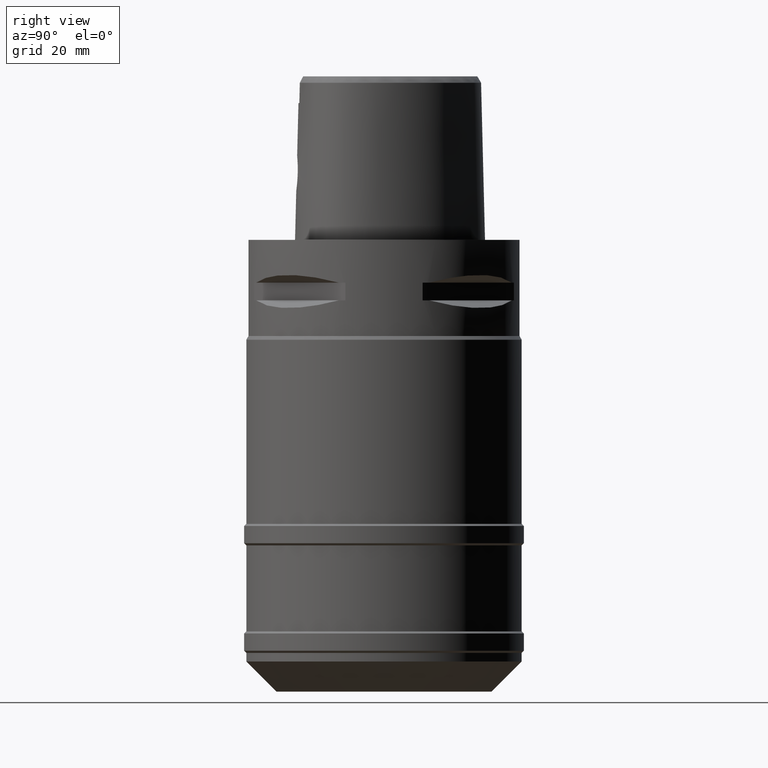
[diagram: clean part render]
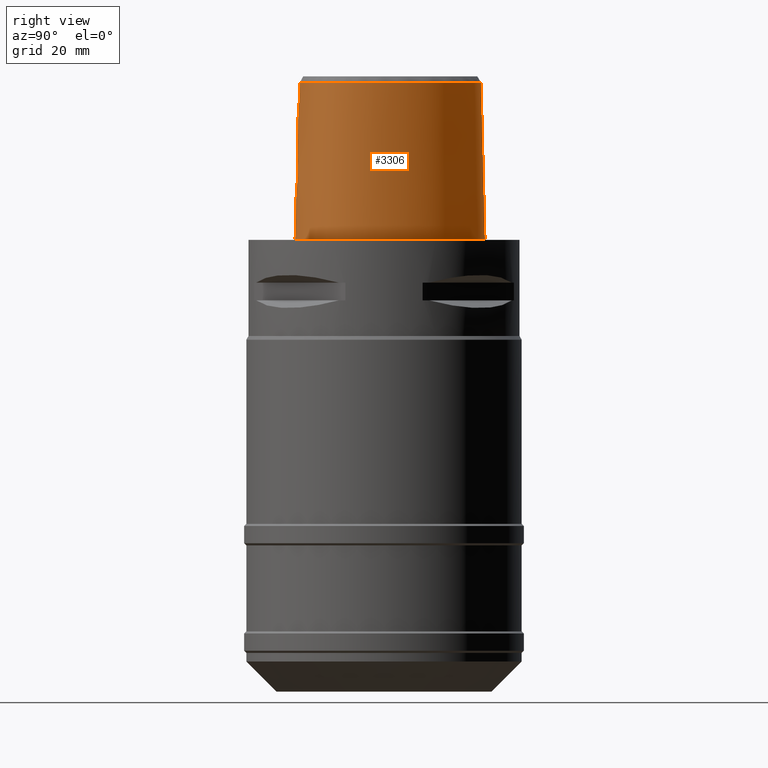
[diagram: same view with one face highlighted and labeled with its STEP entity id]
A machine part, right view. The second image highlights one B-rep face of the part: STEP entity #3306.
In plain terms, the highlighted face is a freeform B-spline surface patch.
Its self-contained STEP definition (entity closure, byte-faithful):
#134=CARTESIAN_POINT('',(3.637738219117E0,-1.956971420299E1,3.652185956444E1));
#144=CARTESIAN_POINT('',(-1.667907792902E-11,2.256201468012E1,
3.652186680744E1));
#145=CARTESIAN_POINT('',(3.876439141491E-1,2.256201468011E1,3.652186680744E1));
#146=CARTESIAN_POINT('',(1.160166764417E0,2.252277287952E1,3.652179525385E1));
#147=CARTESIAN_POINT('',(2.385461868672E0,2.233619832574E1,3.652187676295E1));
#148=CARTESIAN_POINT('',(3.669786076945E0,2.200750917845E1,3.652186319644E1));
#149=CARTESIAN_POINT('',(5.027986179812E0,2.151685594830E1,3.652187402889E1));
#150=CARTESIAN_POINT('',(6.459564743744E0,2.084105507600E1,3.652186779070E1));
#151=CARTESIAN_POINT('',(7.912176109637E0,1.998828303412E1,3.652186807808E1));
#152=CARTESIAN_POINT('',(9.355461898342E0,1.897262199195E1,3.652186340391E1));
#153=CARTESIAN_POINT('',(1.080575828428E1,1.777688421416E1,3.652187155570E1));
#154=CARTESIAN_POINT('',(1.232138423369E1,1.632857174076E1,3.652186551832E1));
#155=CARTESIAN_POINT('',(1.393850104042E1,1.452487170156E1,3.652186935294E1));
#156=CARTESIAN_POINT('',(1.551864252029E1,1.244938668258E1,3.652183742926E1));
#157=CARTESIAN_POINT('',(1.697015951435E1,1.019683525629E1,3.652186904372E1));
#158=CARTESIAN_POINT('',(1.824544277146E1,7.833086968720E0,3.652186144215E1));
#159=CARTESIAN_POINT('',(1.931318362197E1,5.420711236267E0,3.652186558218E1));
#160=CARTESIAN_POINT('',(2.013149247763E1,3.083916746228E0,3.652187105172E1));
#161=CARTESIAN_POINT('',(2.068866406552E1,9.806703677154E-1,3.652186030585E1));
#162=CARTESIAN_POINT('',(2.104336611833E1,-9.155788206726E-1,3.652186922946E1));
#163=CARTESIAN_POINT('',(2.123896886505E1,-2.687156799710E0,3.652186568778E1));
#164=CARTESIAN_POINT('',(2.128983019219E1,-4.395801704161E0,3.652186796707E1));
#165=CARTESIAN_POINT('',(2.119430248586E1,-6.015130475253E0,3.652186710282E1));
#166=CARTESIAN_POINT('',(2.096948135973E1,-7.476697374670E0,3.652187011135E1));
#167=CARTESIAN_POINT('',(2.063672305575E1,-8.789154002814E0,3.652186783708E1));
#168=CARTESIAN_POINT('',(2.020963216500E1,-9.970830707856E0,3.652185746801E1));
#169=CARTESIAN_POINT('',(1.969839222879E1,-1.103813041534E1,3.652187889151E1));
#170=CARTESIAN_POINT('',(1.909005209770E1,-1.203154018613E1,3.652187263921E1));
#171=CARTESIAN_POINT('',(1.835332997358E1,-1.299949864240E1,3.652187671442E1));
#172=CARTESIAN_POINT('',(1.746431925924E1,-1.395332925741E1,3.652186406049E1));
#173=CARTESIAN_POINT('',(1.641022790193E1,-1.488523317881E1,3.652186886226E1));
#174=CARTESIAN_POINT('',(1.514804718088E1,-1.580358881685E1,3.652186869152E1));
#175=CARTESIAN_POINT('',(1.371156636844E1,-1.665845784554E1,3.652186525004E1));
#176=CARTESIAN_POINT('',(1.214638634895E1,-1.742004841323E1,3.652186783812E1));
#177=CARTESIAN_POINT('',(1.042424140204E1,-1.809836003957E1,3.652187061086E1));
#178=CARTESIAN_POINT('',(8.494297543563E0,-1.869976187446E1,3.652185559946E1));
#179=CARTESIAN_POINT('',(6.206001096755E0,-1.922612770503E1,3.652187910101E1));
#180=CARTESIAN_POINT('',(4.519194829960E0,-1.947579793058E1,3.652183691898E1));
#181=CARTESIAN_POINT('',(3.637738219117E0,-1.956971420299E1,3.652185956444E1));
#255=DIRECTION('',(-1.665636293796E-9,-2.499140646182E-2,-9.996876660253E-1));
#256=VECTOR('',#255,1.225382733632E1);
#257=CARTESIAN_POINT('',(2.041042029991E-8,-1.988004246002E1,3.180000004972E1));
#258=LINE('',#257,#256);
#276=CARTESIAN_POINT('',(-1.106952355664E-12,-2.038876923348E1,1.145E1));
#281=DIRECTION('',(-6.778216563452E-13,-2.499051295390E-2,-9.996876883619E-1));
#282=VECTOR('',#281,1.145357708542E1);
#283=CARTESIAN_POINT('',(-1.106952355664E-12,-2.038876923348E1,1.145E1));
#284=LINE('',#283,#282);
#304=CARTESIAN_POINT('',(-8.870434946782E-12,-2.0675E1,4.407585407762E-14));
#305=CARTESIAN_POINT('',(9.157886753971E-1,-2.0675E1,4.407585407762E-14));
#306=CARTESIAN_POINT('',(2.716234500743E0,-2.060527203343E1,
-2.045567506600E-14));
#307=CARTESIAN_POINT('',(5.360203272369E0,-2.029905091003E1,0.E0));
#308=CARTESIAN_POINT('',(7.837418141586E0,-1.981293365489E1,0.E0));
#309=CARTESIAN_POINT('',(1.010182478840E1,-1.917835039156E1,0.E0));
#310=CARTESIAN_POINT('',(1.212577374062E1,-1.842825659410E1,0.E0));
#311=CARTESIAN_POINT('',(1.390431626838E1,-1.759330896769E1,0.E0));
#312=CARTESIAN_POINT('',(1.544841011934E1,-1.669781835896E1,0.E0));
#313=CARTESIAN_POINT('',(1.677660927699E1,-1.575964295179E1,0.E0));
#314=CARTESIAN_POINT('',(1.790980551229E1,-1.479156481204E1,0.E0));
#315=CARTESIAN_POINT('',(1.887255026170E1,-1.379671229974E1,0.E0));
#316=CARTESIAN_POINT('',(1.967701849581E1,-1.278536325006E1,0.E0));
#317=CARTESIAN_POINT('',(2.034722948819E1,-1.174896512307E1,0.E0));
#318=CARTESIAN_POINT('',(2.091065913139E1,-1.064911485386E1,0.E0));
#319=CARTESIAN_POINT('',(2.138559521904E1,-9.442788469570E0,0.E0));
#320=CARTESIAN_POINT('',(2.176481788559E1,-8.114107993502E0,0.E0));
#321=CARTESIAN_POINT('',(2.203676139310E1,-6.647931332744E0,0.E0));
#322=CARTESIAN_POINT('',(2.218500875372E1,-5.028262774781E0,0.E0));
#323=CARTESIAN_POINT('',(2.218835296590E1,-3.242731615479E0,0.E0));
#324=CARTESIAN_POINT('',(2.202179983097E1,-1.283568250668E0,0.E0));
#325=CARTESIAN_POINT('',(2.165898021113E1,8.448271094581E-1,0.E0));
#326=CARTESIAN_POINT('',(2.107570055479E1,3.124446706083E0,0.E0));
#327=CARTESIAN_POINT('',(2.025673108642E1,5.514427736557E0,0.E0));
#328=CARTESIAN_POINT('',(1.920132339953E1,7.954281141581E0,0.E0));
#329=CARTESIAN_POINT('',(1.792993274410E1,1.036427455273E1,0.E0));
#330=CARTESIAN_POINT('',(1.647752867654E1,1.266879911410E1,0.E0));
#331=CARTESIAN_POINT('',(1.489176388439E1,1.480080580690E1,0.E0));
#332=CARTESIAN_POINT('',(1.323116568206E1,1.670310415222E1,0.E0));
#333=CARTESIAN_POINT('',(1.154923417819E1,1.834550527201E1,0.E0));
#334=CARTESIAN_POINT('',(9.887651117779E0,1.972206079902E1,0.E0));
#335=CARTESIAN_POINT('',(8.275410117849E0,2.084364901641E1,0.E0));
#336=CARTESIAN_POINT('',(6.728295441344E0,2.173185750559E1,0.E0));
#337=CARTESIAN_POINT('',(5.252369441389E0,2.241189455146E1,0.E0));
#338=CARTESIAN_POINT('',(3.846984842658E0,2.290849605733E1,0.E0));
#339=CARTESIAN_POINT('',(2.506799832726E0,2.324345605061E1,0.E0));
#340=CARTESIAN_POINT('',(1.226301165713E0,2.343448453374E1,
-1.913318389884E-14));
#341=CARTESIAN_POINT('',(4.031661629987E-1,2.347499999999E1,
4.122628164775E-14));
#342=CARTESIAN_POINT('',(5.011711158472E-11,2.347499999999E1,
4.122628164775E-14));
#347=CARTESIAN_POINT('',(5.011711158472E-11,2.347499999999E1,
4.122628164775E-14));
#385=CARTESIAN_POINT('',(-8.870434946782E-12,-2.0675E1,4.407585407762E-14));
#1180=CARTESIAN_POINT('',(-1.106952355664E-12,-2.038876923348E1,1.145E1));
#1181=CARTESIAN_POINT('',(3.518410039384E-1,-2.038876923348E1,1.145E1));
#1182=CARTESIAN_POINT('',(1.056002269218E0,-2.037568214282E1,1.154238708990E1));
#1183=CARTESIAN_POINT('',(2.040385422199E0,-2.032131306427E1,1.194792367503E1));
#1184=CARTESIAN_POINT('',(2.891794145478E0,-2.024379318177E1,1.259807706061E1));
#1185=CARTESIAN_POINT('',(3.545775398699E0,-2.016065841224E1,1.344776599254E1));
#1186=CARTESIAN_POINT('',(3.957111572052E0,-2.009016928171E1,1.443938952574E1));
#1187=CARTESIAN_POINT('',(4.096327614963E0,-2.004685475213E1,1.549997055253E1));
#1188=CARTESIAN_POINT('',(3.957577704512E0,-2.003680793094E1,1.655714913641E1));
#1189=CARTESIAN_POINT('',(3.549577819492E0,-2.005726835327E1,1.754497021867E1));
#1190=CARTESIAN_POINT('',(2.899403737141E0,-2.009772754991E1,1.839411373098E1));
#1191=CARTESIAN_POINT('',(2.049555943289E0,-2.014302748467E1,1.904720420744E1));
#1192=CARTESIAN_POINT('',(1.060000729701E0,-2.017769463663E1,1.945708074101E1));
#1193=CARTESIAN_POINT('',(3.531896813643E-1,-2.018628283969E1,1.955E1));
#1194=CARTESIAN_POINT('',(0.E0,-2.018628283969E1,1.955E1));
#1199=CARTESIAN_POINT('',(3.736696120838E0,-1.967778323292E1,3.180000004973E1));
#1200=CARTESIAN_POINT('',(3.726005752326E0,-1.966575923680E1,3.232454431401E1));
#1201=CARTESIAN_POINT('',(3.704089546608E0,-1.964135163374E1,3.337368958252E1));
#1202=CARTESIAN_POINT('',(3.671106187705E0,-1.960533295284E1,3.494764256979E1));
#1203=CARTESIAN_POINT('',(3.649042743234E0,-1.958170238761E1,3.599710209057E1));
#1204=CARTESIAN_POINT('',(3.637738219117E0,-1.956971420299E1,3.652185956444E1));
#1209=DIRECTION('',(1.828365692217E-12,2.499051290963E-2,-9.996876883630E-1));
#1210=VECTOR('',#1209,3.653327657485E1);
#1211=CARTESIAN_POINT('',(-1.667907792902E-11,2.256201468012E1,
3.652186680744E1));
#1212=LINE('',#1211,#1210);
#1216=CARTESIAN_POINT('',(3.736696120838E0,-1.967778323292E1,3.180000004973E1));
#1217=CARTESIAN_POINT('',(3.322953877844E0,-1.972294683117E1,3.180000004973E1));
#1218=CARTESIAN_POINT('',(2.494485023251E0,-1.979770229043E1,3.179999998342E1));
#1219=CARTESIAN_POINT('',(1.247889117313E0,-1.986528006854E1,3.179999998343E1));
#1220=CARTESIAN_POINT('',(4.161790006858E-1,-1.988004246001E1,
3.180000004972E1));
#1221=CARTESIAN_POINT('',(2.041042029991E-8,-1.988004246002E1,
3.180000004972E1));
#1226=CARTESIAN_POINT('',(2.041042029991E-8,-1.988004246002E1,
3.180000004972E1));
#1671=VERTEX_POINT('',#134);
#1672=VERTEX_POINT('',#1199);
#1678=CARTESIAN_POINT('',(-1.667907792902E-11,2.256201468012E1,
3.652186680744E1));
#1679=VERTEX_POINT('',#1678);
#1680=VERTEX_POINT('',#347);
#1681=VERTEX_POINT('',#385);
#1682=VERTEX_POINT('',#1226);
#1683=CARTESIAN_POINT('',(0.E0,-2.018628283969E1,1.955E1));
#1684=VERTEX_POINT('',#1683);
#1685=VERTEX_POINT('',#276);
#3194=CARTESIAN_POINT('',(-6.840631435410E-1,-2.068668115963E1,
-7.304375083385E-1));
#3195=CARTESIAN_POINT('',(-6.779734151159E-1,-2.037023491190E1,
1.193047930286E1));
#3196=CARTESIAN_POINT('',(-6.718836866909E-1,-2.005378866416E1,
2.459139611406E1));
#3197=CARTESIAN_POINT('',(-6.657939582658E-1,-1.973734241643E1,
3.725231292526E1));
#3198=CARTESIAN_POINT('',(-4.561077449158E-1,-2.069106755192E1,
-7.304375083385E-1));
#3199=CARTESIAN_POINT('',(-4.520500680053E-1,-2.037458454875E1,
1.193047930286E1));
#3200=CARTESIAN_POINT('',(-4.479923910949E-1,-2.005810154558E1,
2.459139611406E1));
#3201=CARTESIAN_POINT('',(-4.439347141844E-1,-1.974161854241E1,
3.725231292526E1));
#3202=CARTESIAN_POINT('',(1.886855603044E0,-2.071358919111E1,
-7.304375083385E-1));
#3203=CARTESIAN_POINT('',(1.870063866029E0,-2.039691458747E1,1.193047930286E1));
#3204=CARTESIAN_POINT('',(1.853272129014E0,-2.008023998384E1,2.459139611406E1));
#3205=CARTESIAN_POINT('',(1.836480391999E0,-1.976356538020E1,3.725231292526E1));
#3206=CARTESIAN_POINT('',(6.344715575936E0,-2.031619964543E1,
-7.304375083385E-1));
#3207=CARTESIAN_POINT('',(6.288476592714E0,-2.000290579135E1,1.193047930286E1));
#3208=CARTESIAN_POINT('',(6.232237609492E0,-1.968961193727E1,2.459139611406E1));
#3209=CARTESIAN_POINT('',(6.175998626269E0,-1.937631808319E1,3.725231292526E1));
#3210=CARTESIAN_POINT('',(1.123887130106E1,-1.891049775609E1,
-7.304375083385E-1));
#3211=CARTESIAN_POINT('',(1.113012658220E1,-1.861140123371E1,1.193047930286E1));
#3212=CARTESIAN_POINT('',(1.102138186334E1,-1.831230471133E1,2.459139611406E1));
#3213=CARTESIAN_POINT('',(1.091263714448E1,-1.801320818895E1,3.725231292526E1));
#3214=CARTESIAN_POINT('',(1.468244496907E1,-1.723001772656E1,
-7.304375083385E-1));
#3215=CARTESIAN_POINT('',(1.452531267129E1,-1.695413754945E1,1.193047930286E1));
#3216=CARTESIAN_POINT('',(1.436818037352E1,-1.667825737233E1,2.459139611406E1));
#3217=CARTESIAN_POINT('',(1.421104807574E1,-1.640237719522E1,3.725231292526E1));
#3218=CARTESIAN_POINT('',(1.697022730844E1,-1.569280482777E1,
-7.304375083385E-1));
#3219=CARTESIAN_POINT('',(1.677374387835E1,-1.544292479229E1,1.193047930286E1));
#3220=CARTESIAN_POINT('',(1.657726044825E1,-1.519304475682E1,2.459139611406E1));
#3221=CARTESIAN_POINT('',(1.638077701815E1,-1.494316472134E1,3.725231292526E1));
#3222=CARTESIAN_POINT('',(1.858171406275E1,-1.418198046255E1,
-7.304375083385E-1));
#3223=CARTESIAN_POINT('',(1.835112159965E1,-1.396357041373E1,1.193047930286E1));
#3224=CARTESIAN_POINT('',(1.812052913654E1,-1.374516036492E1,2.459139611406E1));
#3225=CARTESIAN_POINT('',(1.788993667344E1,-1.352675031610E1,3.725231292526E1));
#3226=CARTESIAN_POINT('',(1.966427014280E1,-1.283600704422E1,
-7.304375083385E-1));
#3227=CARTESIAN_POINT('',(1.940779775070E1,-1.264961931953E1,1.193047930286E1));
#3228=CARTESIAN_POINT('',(1.915132535861E1,-1.246323159485E1,2.459139611406E1));
#3229=CARTESIAN_POINT('',(1.889485296652E1,-1.227684387017E1,3.725231292526E1));
#3230=CARTESIAN_POINT('',(2.036546124141E1,-1.175800452993E1,
-7.304375083385E-1));
#3231=CARTESIAN_POINT('',(2.009084480675E1,-1.159945465686E1,1.193047930286E1));
#3232=CARTESIAN_POINT('',(1.981622837209E1,-1.144090478378E1,2.459139611406E1));
#3233=CARTESIAN_POINT('',(1.954161193742E1,-1.128235491070E1,3.725231292526E1));
#3234=CARTESIAN_POINT('',(2.094844325475E1,-1.061175396824E1,
-7.304375083385E-1));
#3235=CARTESIAN_POINT('',(2.065879055586E1,-1.048283622704E1,1.193047930286E1));
#3236=CARTESIAN_POINT('',(2.036913785698E1,-1.035391848584E1,2.459139611406E1));
#3237=CARTESIAN_POINT('',(2.007948515809E1,-1.022500074464E1,3.725231292526E1));
#3238=CARTESIAN_POINT('',(2.157281238851E1,-9.001246193962E0,
-7.304375083385E-1));
#3239=CARTESIAN_POINT('',(2.126836749598E1,-8.910752269448E0,1.193047930286E1));
#3240=CARTESIAN_POINT('',(2.096392260344E1,-8.820258344934E0,2.459139611406E1));
#3241=CARTESIAN_POINT('',(2.065947771090E1,-8.729764420419E0,3.725231292526E1));
#3242=CARTESIAN_POINT('',(2.207548128686E1,-6.850245534873E0,
-7.304375083385E-1));
#3243=CARTESIAN_POINT('',(2.176083719714E1,-6.805026055397E0,1.193047930286E1));
#3244=CARTESIAN_POINT('',(2.144619310743E1,-6.759806575922E0,2.459139611406E1));
#3245=CARTESIAN_POINT('',(2.113154901771E1,-6.714587096446E0,3.725231292526E1));
#3246=CARTESIAN_POINT('',(2.226285556109E1,-4.100361500074E0,
-7.304375083385E-1));
#3247=CARTESIAN_POINT('',(2.194536986372E1,-4.102220498791E0,1.193047930286E1));
#3248=CARTESIAN_POINT('',(2.162788416634E1,-4.104079497508E0,2.459139611406E1));
#3249=CARTESIAN_POINT('',(2.131039846897E1,-4.105938496224E0,3.725231292526E1));
#3250=CARTESIAN_POINT('',(2.199640701171E1,-2.778990169752E-1,
-7.304375083385E-1));
#3251=CARTESIAN_POINT('',(2.168301109176E1,-3.332743894050E-1,
1.193047930286E1));
#3252=CARTESIAN_POINT('',(2.136961517182E1,-3.886497618348E-1,
2.459139611406E1));
#3253=CARTESIAN_POINT('',(2.105621925187E1,-4.440251342646E-1,
3.725231292526E1));
#3254=CARTESIAN_POINT('',(2.076670354509E1,4.663413652535E0,
-7.304375083385E-1));
#3255=CARTESIAN_POINT('',(2.046725051605E1,4.555493675262E0,1.193047930286E1));
#3256=CARTESIAN_POINT('',(2.016779748701E1,4.447573697988E0,2.459139611406E1));
#3257=CARTESIAN_POINT('',(1.986834445797E1,4.339653720715E0,3.725231292526E1));
#3258=CARTESIAN_POINT('',(1.808416037945E1,1.044089486998E1,
-7.304375083385E-1));
#3259=CARTESIAN_POINT('',(1.780867314696E1,1.028184212366E1,1.193047930286E1));
#3260=CARTESIAN_POINT('',(1.753318591447E1,1.012278937733E1,2.459139611406E1));
#3261=CARTESIAN_POINT('',(1.725769868197E1,9.963736631002E0,3.725231292526E1));
#3262=CARTESIAN_POINT('',(1.442198651673E1,1.565278599975E1,
-7.304375083385E-1));
#3263=CARTESIAN_POINT('',(1.417879764611E1,1.544741200413E1,1.193047930286E1));
#3264=CARTESIAN_POINT('',(1.393560877549E1,1.524203800852E1,2.459139611406E1));
#3265=CARTESIAN_POINT('',(1.369241990487E1,1.503666401290E1,3.725231292526E1));
#3266=CARTESIAN_POINT('',(1.075753573538E1,1.918839675422E1,
-7.304375083385E-1));
#3267=CARTESIAN_POINT('',(1.055288410563E1,1.894467593101E1,1.193047930286E1));
#3268=CARTESIAN_POINT('',(1.034823247587E1,1.870095510779E1,2.459139611406E1));
#3269=CARTESIAN_POINT('',(1.014358084611E1,1.845723428457E1,3.725231292526E1));
#3270=CARTESIAN_POINT('',(7.580410837987E0,2.133037925919E1,
-7.304375083385E-1));
#3271=CARTESIAN_POINT('',(7.420053174957E0,2.105635751643E1,1.193047930286E1));
#3272=CARTESIAN_POINT('',(7.259695511927E0,2.078233577367E1,2.459139611406E1));
#3273=CARTESIAN_POINT('',(7.099337848897E0,2.050831403091E1,3.725231292526E1));
#3274=CARTESIAN_POINT('',(5.105252914507E0,2.254305023840E1,
-7.304375083385E-1));
#3275=CARTESIAN_POINT('',(4.987110695979E0,2.224795287695E1,1.193047930286E1));
#3276=CARTESIAN_POINT('',(4.868968477452E0,2.195285551549E1,2.459139611406E1));
#3277=CARTESIAN_POINT('',(4.750826258925E0,2.165775815403E1,3.725231292526E1));
#3278=CARTESIAN_POINT('',(2.568271204898E0,2.331126237969E1,
-7.304375083385E-1));
#3279=CARTESIAN_POINT('',(2.503210920572E0,2.299958946507E1,1.193047930286E1));
#3280=CARTESIAN_POINT('',(2.438150636246E0,2.268791655044E1,2.459139611406E1));
#3281=CARTESIAN_POINT('',(2.373090351919E0,2.237624363582E1,3.725231292526E1));
#3282=CARTESIAN_POINT('',(6.155340738183E-1,2.351883497325E1,
-7.304375083385E-1));
#3283=CARTESIAN_POINT('',(5.990982052587E-1,2.320165475977E1,1.193047930286E1));
#3284=CARTESIAN_POINT('',(5.826623366990E-1,2.288447454629E1,2.459139611406E1));
#3285=CARTESIAN_POINT('',(5.662264681394E-1,2.256729433281E1,3.725231292526E1));
#3286=CARTESIAN_POINT('',(-4.812391252390E-1,2.348607175859E1,
-7.304375083385E-1));
#3287=CARTESIAN_POINT('',(-4.685451995689E-1,2.316976081601E1,
1.193047930286E1));
#3288=CARTESIAN_POINT('',(-4.558512738988E-1,2.285344987343E1,
2.459139611406E1));
#3289=CARTESIAN_POINT('',(-4.431573482288E-1,2.253713893085E1,
3.725231292526E1));
#3290=CARTESIAN_POINT('',(-7.217521645116E-1,2.347150798269E1,
-7.304375083385E-1));
#3291=CARTESIAN_POINT('',(-7.025952905962E-1,2.315559752946E1,
1.193047930286E1));
#3292=CARTESIAN_POINT('',(-6.834384166807E-1,2.283968707622E1,
2.459139611406E1));
#3293=CARTESIAN_POINT('',(-6.642815427653E-1,2.252377662299E1,
3.725231292526E1));
#3294=B_SPLINE_SURFACE_WITH_KNOTS('',3,3,((#3194,#3195,#3196,#3197),(#3198,
#3199,#3200,#3201),(#3202,#3203,#3204,#3205),(#3206,#3207,#3208,#3209),(#3210,
#3211,#3212,#3213),(#3214,#3215,#3216,#3217),(#3218,#3219,#3220,#3221),(#3222,
#3223,#3224,#3225),(#3226,#3227,#3228,#3229),(#3230,#3231,#3232,#3233),(#3234,
#3235,#3236,#3237),(#3238,#3239,#3240,#3241),(#3242,#3243,#3244,#3245),(#3246,
#3247,#3248,#3249),(#3250,#3251,#3252,#3253),(#3254,#3255,#3256,#3257),(#3258,
#3259,#3260,#3261),(#3262,#3263,#3264,#3265),(#3266,#3267,#3268,#3269),(#3270,
#3271,#3272,#3273),(#3274,#3275,#3276,#3277),(#3278,#3279,#3280,#3281),(#3282,
#3283,#3284,#3285),(#3286,#3287,#3288,#3289),(#3290,#3291,#3292,#3293)),
.UNSPECIFIED.,.F.,.F.,.F.,(4,1,1,1,1,1,1,1,1,1,1,1,1,1,1,1,1,1,1,1,1,1,4),(4,4),
(-8.985960173587E-3,0.E0,8.333333333341E-2,1.666666666667E-1,2.083333333333E-1,
2.5E-1,2.916666666667E-1,3.125E-1,3.333333333333E-1,3.541666666667E-1,
3.749999999999E-1,4.166666666666E-1,4.583333333332E-1,4.999999999999E-1,
5.833333333331E-1,6.666666666665E-1,7.499999999998E-1,8.333333333330E-1,
8.749999999997E-1,9.166666666664E-1,9.583333333330E-1,1.E0,1.011710456763E0),(
5.711888236698E-9,9.999997086937E-1),.UNSPECIFIED.);
#3295=ORIENTED_EDGE('',*,*,#2535,.F.);
#3296=ORIENTED_EDGE('',*,*,#2519,.F.);
#3297=ORIENTED_EDGE('',*,*,#3186,.T.);
#3298=ORIENTED_EDGE('',*,*,#2515,.F.);
#3300=ORIENTED_EDGE('',*,*,#3299,.F.);
#3301=ORIENTED_EDGE('',*,*,#1878,.T.);
#3302=ORIENTED_EDGE('',*,*,#2144,.F.);
#3303=ORIENTED_EDGE('',*,*,#2509,.T.);
#3304=EDGE_LOOP('',(#3295,#3296,#3297,#3298,#3300,#3301,#3302,#3303));
#3305=FACE_OUTER_BOUND('',#3304,.F.);
#182=B_SPLINE_CURVE_WITH_KNOTS('',3,(#144,#145,#146,#147,#148,#149,#150,#151,
#152,#153,#154,#155,#156,#157,#158,#159,#160,#161,#162,#163,#164,#165,#166,#167,
#168,#169,#170,#171,#172,#173,#174,#175,#176,#177,#178,#179,#180,#181),
.UNSPECIFIED.,.F.,.F.,(4,1,1,1,1,1,1,1,1,1,1,1,1,1,1,1,1,1,1,1,1,1,1,1,1,1,1,1,
1,1,1,1,1,1,1,4),(0.E0,2.857142857143E-2,5.714285714286E-2,8.571428571429E-2,
1.142857142857E-1,1.428571428571E-1,1.714285714286E-1,2.E-1,2.285714285714E-1,
2.571428571429E-1,2.857142857143E-1,3.142857142857E-1,3.428571428571E-1,
3.714285714286E-1,4.E-1,4.285714285714E-1,4.571428571429E-1,4.857142857143E-1,
5.142857142857E-1,5.428571428571E-1,5.714285714286E-1,6.E-1,6.285714285714E-1,
6.571428571429E-1,6.857142857143E-1,7.142857142857E-1,7.428571428571E-1,
7.714285714286E-1,8.E-1,8.285714285714E-1,8.571428571429E-1,8.857142857143E-1,
9.142857142857E-1,9.428571428571E-1,9.714285714286E-1,1.E0),.UNSPECIFIED.);
#343=B_SPLINE_CURVE_WITH_KNOTS('',3,(#304,#305,#306,#307,#308,#309,#310,#311,
#312,#313,#314,#315,#316,#317,#318,#319,#320,#321,#322,#323,#324,#325,#326,#327,
#328,#329,#330,#331,#332,#333,#334,#335,#336,#337,#338,#339,#340,#341,#342),
.UNSPECIFIED.,.F.,.F.,(4,1,1,1,1,1,1,1,1,1,1,1,1,1,1,1,1,1,1,1,1,1,1,1,1,1,1,1,
1,1,1,1,1,1,1,1,4),(0.E0,2.777777777778E-2,5.555555555556E-2,8.333333333333E-2,
1.111111111111E-1,1.388888888889E-1,1.666666666667E-1,1.944444444444E-1,
2.222222222222E-1,2.5E-1,2.777777777778E-1,3.055555555556E-1,3.333333333333E-1,
3.611111111111E-1,3.888888888889E-1,4.166666666667E-1,4.444444444444E-1,
4.722222222222E-1,5.E-1,5.277777777778E-1,5.555555555556E-1,5.833333333333E-1,
6.111111111111E-1,6.388888888889E-1,6.666666666667E-1,6.944444444444E-1,
7.222222222222E-1,7.5E-1,7.777777777778E-1,8.055555555556E-1,8.333333333333E-1,
8.611111111111E-1,8.888888888889E-1,9.166666666667E-1,9.444444444444E-1,
9.722222222222E-1,1.E0),.UNSPECIFIED.);
#1195=B_SPLINE_CURVE_WITH_KNOTS('',3,(#1180,#1181,#1182,#1183,#1184,#1185,#1186,
#1187,#1188,#1189,#1190,#1191,#1192,#1193,#1194),.UNSPECIFIED.,.F.,.F.,(4,1,1,1,
1,1,1,1,1,1,1,1,4),(0.E0,8.333333333333E-2,1.666666666667E-1,2.5E-1,
3.333333333333E-1,4.166666666667E-1,5.E-1,5.833333333333E-1,6.666666666667E-1,
7.5E-1,8.333333333333E-1,9.166666666667E-1,1.E0),.UNSPECIFIED.);
#1205=B_SPLINE_CURVE_WITH_KNOTS('',3,(#1199,#1200,#1201,#1202,#1203,#1204),
.UNSPECIFIED.,.F.,.F.,(4,1,1,4),(0.E0,3.333333333333E-1,6.666666666667E-1,1.E0),
.UNSPECIFIED.);
#1222=B_SPLINE_CURVE_WITH_KNOTS('',3,(#1216,#1217,#1218,#1219,#1220,#1221),
.UNSPECIFIED.,.F.,.F.,(4,1,1,4),(0.E0,3.333333333333E-1,6.666666666667E-1,1.E0),
.UNSPECIFIED.);
#1878=EDGE_CURVE('',#1672,#1671,#1205,.T.);
#2144=EDGE_CURVE('',#1679,#1671,#182,.T.);
#2509=EDGE_CURVE('',#1679,#1680,#1212,.T.);
#2515=EDGE_CURVE('',#1682,#1684,#258,.T.);
#2519=EDGE_CURVE('',#1685,#1681,#284,.T.);
#2535=EDGE_CURVE('',#1681,#1680,#343,.T.);
#3186=EDGE_CURVE('',#1685,#1684,#1195,.T.);
#3299=EDGE_CURVE('',#1672,#1682,#1222,.T.);
#3306=ADVANCED_FACE('',(#3305),#3294,.T.);